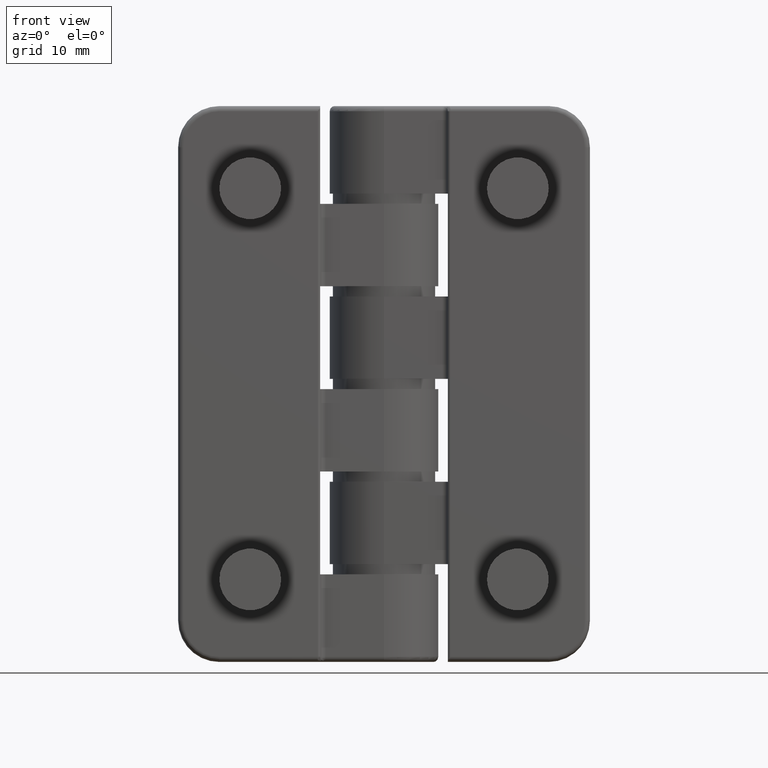
[diagram: clean part render]
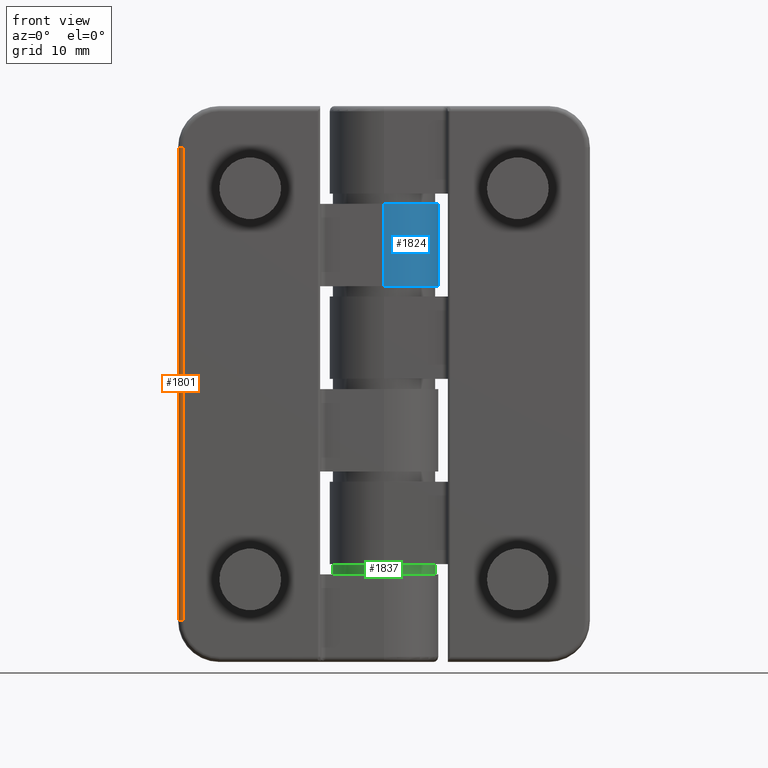
[diagram: same view with three faces highlighted in distinct colors, each labeled with its STEP entity id]
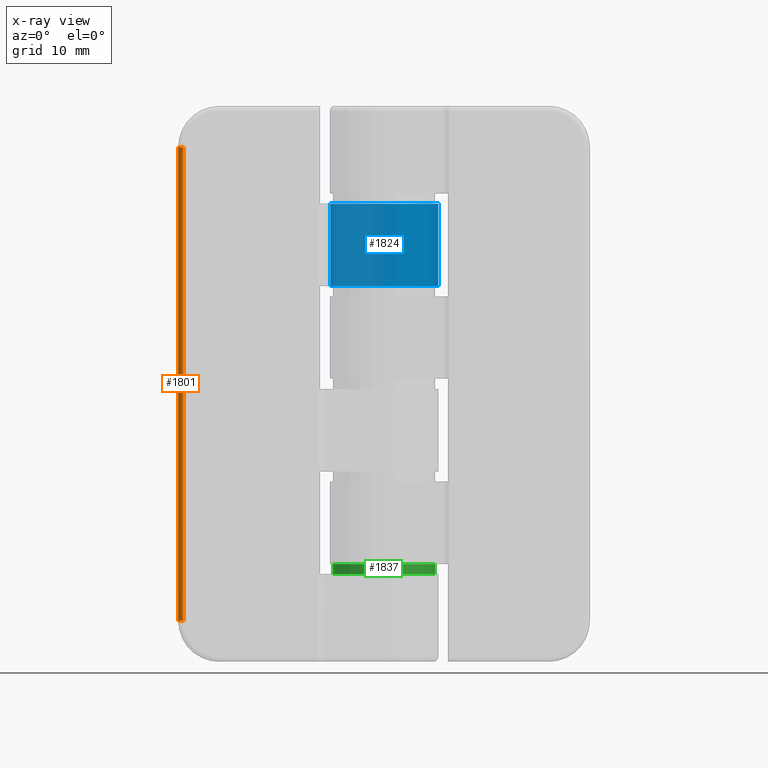
[diagram: x-ray of the same camera — body ghosted, the three highlighted faces saturated]
A machine part, front view with three faces highlighted in distinct colors.
The next image is the same camera in x-ray (body ghosted, the three faces saturated) — at least one of them is partly hidden behind the body in this view.
Their STEP definitions:

[orange] entity #1801 — the highlighted cylindrical surface (edge-blend (fillet) strip) has radius 0.5 mm, axis along (0, 0, -1).
#118=LINE('',#3211,#224);
#135=LINE('',#3272,#241);
#224=VECTOR('',#2414,46.);
#241=VECTOR('',#2479,46.);
#445=FACE_OUTER_BOUND('',#587,.T.);
#587=EDGE_LOOP('',(#1504,#1505,#1506,#1507));
#744=CIRCLE('',#2005,0.499999999999999);
#746=CIRCLE('',#2008,0.5);
#888=VERTEX_POINT('',#3208);
#889=VERTEX_POINT('',#3210);
#908=VERTEX_POINT('',#3266);
#909=VERTEX_POINT('',#3270);
#1095=EDGE_CURVE('',#889,#888,#118,.T.);
#1123=EDGE_CURVE('',#889,#908,#744,.T.);
#1125=EDGE_CURVE('',#888,#909,#746,.T.);
#1126=EDGE_CURVE('',#909,#908,#135,.T.);
#1504=ORIENTED_EDGE('',*,*,#1125,.T.);
#1505=ORIENTED_EDGE('',*,*,#1126,.T.);
#1506=ORIENTED_EDGE('',*,*,#1123,.F.);
#1507=ORIENTED_EDGE('',*,*,#1095,.T.);
#1711=CYLINDRICAL_SURFACE('',#2007,0.5);
#1801=ADVANCED_FACE('',(#445),#1711,.T.);
#2005=AXIS2_PLACEMENT_3D('',#3267,#2471,#2472);
#2007=AXIS2_PLACEMENT_3D('',#3269,#2475,#2476);
#2008=AXIS2_PLACEMENT_3D('',#3271,#2477,#2478);
#2414=DIRECTION('',(0.,0.,-1.));
#2471=DIRECTION('center_axis',(0.,0.,1.));
#2472=DIRECTION('ref_axis',(0.,-1.,0.));
#2475=DIRECTION('center_axis',(0.,0.,1.));
#2476=DIRECTION('ref_axis',(0.707106781186549,-0.707106781186546,0.));
#2477=DIRECTION('center_axis',(0.,0.,1.));
#2478=DIRECTION('ref_axis',(0.,-1.,0.));
#2479=DIRECTION('',(0.,0.,1.));
#3208=CARTESIAN_POINT('',(19.5,1.87350135405495E-15,-23.));
#3210=CARTESIAN_POINT('',(19.5,1.88054081163863E-15,23.));
#3211=CARTESIAN_POINT('',(19.5,1.87350135405495E-15,0.));
#3266=CARTESIAN_POINT('',(20.,0.5,23.));
#3267=CARTESIAN_POINT('Origin',(19.5,0.5,23.));
#3269=CARTESIAN_POINT('Origin',(19.5,0.500000000000002,0.));
#3270=CARTESIAN_POINT('',(20.,0.500000000000002,-23.));
#3271=CARTESIAN_POINT('Origin',(19.5,0.500000000000002,-23.));
#3272=CARTESIAN_POINT('',(20.,0.500000000000002,0.));

[blue] entity #1824 — the highlighted cylindrical surface (partial cylindrical patch) has radius 5.3 mm, axis along (0, 0, -1).
#156=LINE('',#3363,#262);
#161=LINE('',#3374,#267);
#262=VECTOR('',#2574,8.);
#267=VECTOR('',#2587,8.);
#468=FACE_OUTER_BOUND('',#613,.T.);
#613=EDGE_LOOP('',(#1617,#1618,#1619,#1620));
#738=CIRCLE('',#1993,5.3);
#740=CIRCLE('',#1997,5.3);
#897=VERTEX_POINT('',#3232);
#898=VERTEX_POINT('',#3234);
#901=VERTEX_POINT('',#3244);
#902=VERTEX_POINT('',#3246);
#1107=EDGE_CURVE('',#898,#897,#738,.T.);
#1113=EDGE_CURVE('',#902,#901,#740,.T.);
#1165=EDGE_CURVE('',#901,#898,#156,.T.);
#1171=EDGE_CURVE('',#897,#902,#161,.T.);
#1617=ORIENTED_EDGE('',*,*,#1113,.T.);
#1618=ORIENTED_EDGE('',*,*,#1165,.T.);
#1619=ORIENTED_EDGE('',*,*,#1107,.T.);
#1620=ORIENTED_EDGE('',*,*,#1171,.T.);
#1721=CYLINDRICAL_SURFACE('',#2049,5.3);
#1824=ADVANCED_FACE('',(#468),#1721,.T.);
#1993=AXIS2_PLACEMENT_3D('',#3235,#2437,#2438);
#1997=AXIS2_PLACEMENT_3D('',#3247,#2449,#2450);
#2049=AXIS2_PLACEMENT_3D('',#3373,#2585,#2586);
#2437=DIRECTION('center_axis',(0.,0.,1.));
#2438=DIRECTION('ref_axis',(-1.,0.,0.));
#2449=DIRECTION('center_axis',(0.,0.,-1.));
#2450=DIRECTION('ref_axis',(-1.,0.,0.));
#2574=DIRECTION('',(0.,0.,-1.));
#2585=DIRECTION('center_axis',(0.,0.,1.));
#2586=DIRECTION('ref_axis',(-1.,0.,0.));
#2587=DIRECTION('',(0.,0.,1.));
#3232=CARTESIAN_POINT('',(0.,0.499999999999998,-17.5));
#3234=CARTESIAN_POINT('',(5.20480547186924,6.8,-17.5));
#3235=CARTESIAN_POINT('Origin',(-3.40610748101056E-16,5.8,-17.5));
#3244=CARTESIAN_POINT('',(5.20480547186924,6.8,-9.49999999999999));
#3246=CARTESIAN_POINT('',(0.,0.499999999999998,-9.49999999999999));
#3247=CARTESIAN_POINT('Origin',(-3.40610748101056E-16,5.8,-9.49999999999999));
#3363=CARTESIAN_POINT('',(5.20480547186924,6.8,0.));
#3373=CARTESIAN_POINT('Origin',(-3.40610748101056E-16,5.8,0.));
#3374=CARTESIAN_POINT('',(0.,0.499999999999998,0.));

[green] entity #1837 — the highlighted cylindrical surface (bore or boss wall) has radius 5 mm, axis along (0, -0, 1).
#362=FACE_BOUND('',#634,.T.);
#481=FACE_OUTER_BOUND('',#633,.T.);
#633=EDGE_LOOP('',(#1649));
#634=EDGE_LOOP('',(#1650));
#773=CIRCLE('',#2071,5.);
#774=CIRCLE('',#2072,5.);
#939=VERTEX_POINT('',#3405);
#940=VERTEX_POINT('',#3407);
#1181=EDGE_CURVE('',#939,#939,#773,.T.);
#1182=EDGE_CURVE('',#940,#940,#774,.T.);
#1649=ORIENTED_EDGE('',*,*,#1181,.F.);
#1650=ORIENTED_EDGE('',*,*,#1182,.T.);
#1726=CYLINDRICAL_SURFACE('',#2070,5.);
#1837=ADVANCED_FACE('',(#481,#362),#1726,.T.);
#2070=AXIS2_PLACEMENT_3D('',#3404,#2629,#2630);
#2071=AXIS2_PLACEMENT_3D('',#3406,#2631,#2632);
#2072=AXIS2_PLACEMENT_3D('',#3408,#2633,#2634);
#2629=DIRECTION('center_axis',(0.,-2.05596856412066E-17,-1.));
#2630=DIRECTION('ref_axis',(0.,1.,0.));
#2631=DIRECTION('center_axis',(0.,-2.05596856412066E-17,-1.));
#2632=DIRECTION('ref_axis',(1.,0.,0.));
#2633=DIRECTION('center_axis',(0.,-2.05596856412066E-17,-1.));
#2634=DIRECTION('ref_axis',(1.,0.,0.));
#3404=CARTESIAN_POINT('Origin',(0.,5.8,18.));
#3405=CARTESIAN_POINT('',(0.,10.8,17.5));
#3406=CARTESIAN_POINT('Origin',(0.,5.8,17.5));
#3407=CARTESIAN_POINT('',(0.,10.8,18.5));
#3408=CARTESIAN_POINT('Origin',(0.,5.8,18.5));